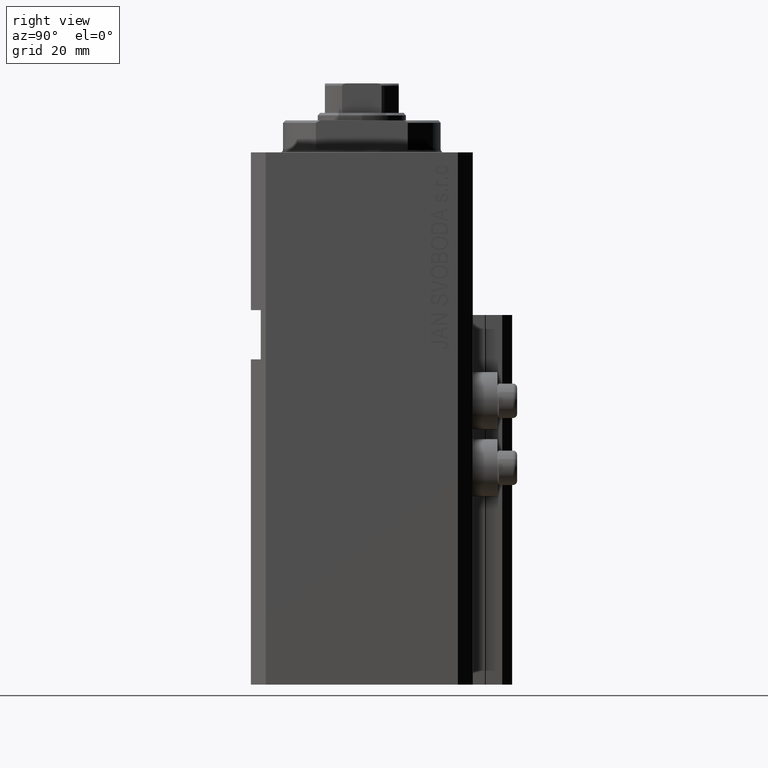
[diagram: clean part render]
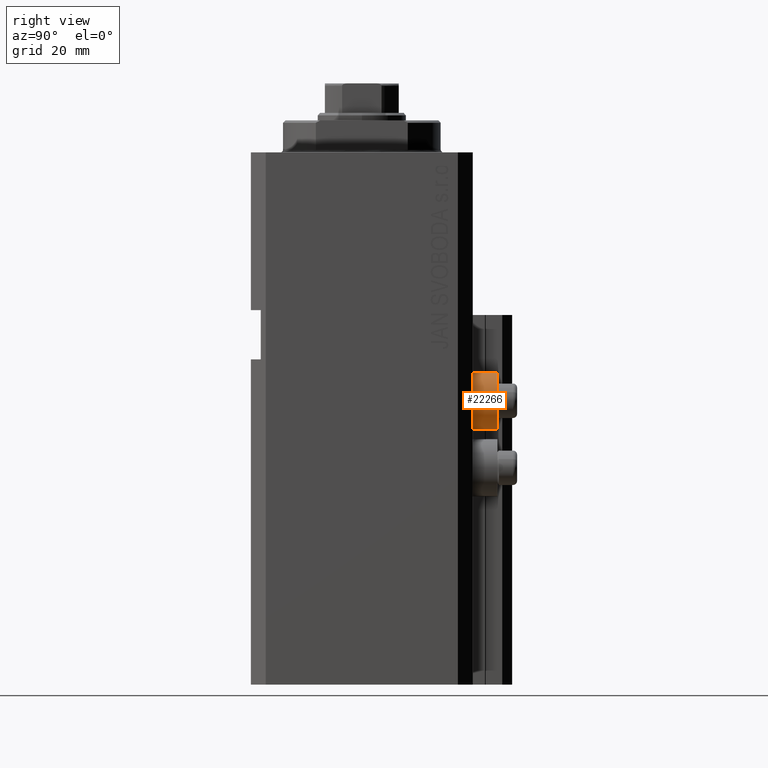
[diagram: same view with one face highlighted and labeled with its STEP entity id]
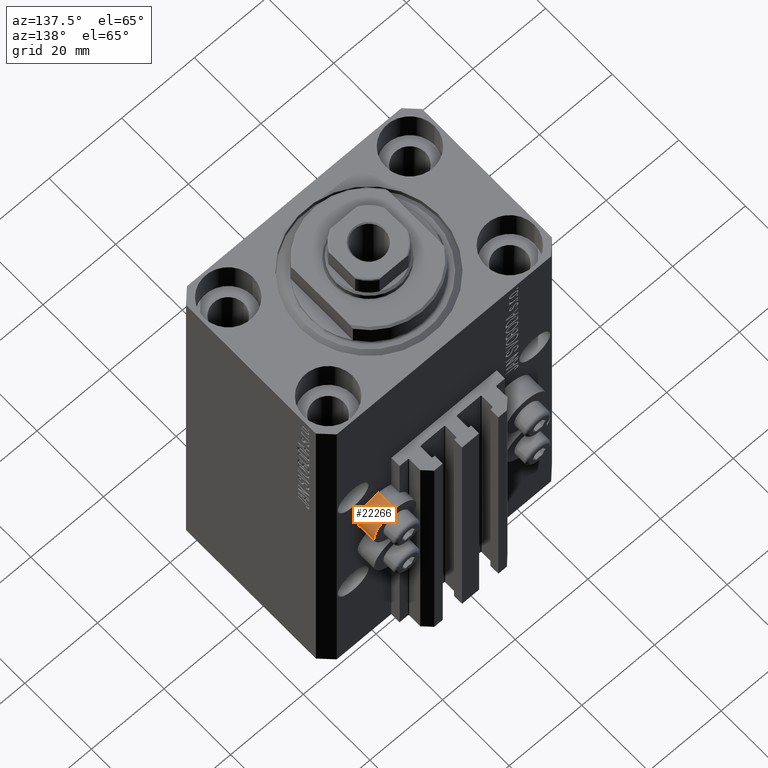
[diagram: same view with one face highlighted and labeled with its STEP entity id]
A machine part, right view. The second image highlights one B-rep face of the part: STEP entity #22266.
A second angle (auxiliary view) of the same face is appended — the face is thin or edge-on in the first view.
In plain terms, the highlighted cylindrical surface (edge-blend (fillet) strip) has radius 5.8 mm, axis along (0, 1, 0).
Its self-contained STEP definition (entity closure, byte-faithful):
#158 = DIRECTION ( 'NONE',  ( -0.000000000000000000, -1.000000000000000000, -0.000000000000000000 ) ) ;
#1231 = LINE ( 'NONE', #30431, #9298 ) ;
#1696 = VERTEX_POINT ( 'NONE', #26730 ) ;
#6152 = VERTEX_POINT ( 'NONE', #38391 ) ;
#6300 = ORIENTED_EDGE ( 'NONE', *, *, #15535, .T. ) ;
#8298 = LINE ( 'NONE', #16018, #27396 ) ;
#9298 = VECTOR ( 'NONE', #29725, 1000.000000000000000 ) ;
#10428 = ORIENTED_EDGE ( 'NONE', *, *, #32292, .F. ) ;
#11938 = CARTESIAN_POINT ( 'NONE',  ( 18.00000000000000355, 22.49999999999951328, -44.60000000000000142 ) ) ;
#13570 = CARTESIAN_POINT ( 'NONE',  ( 18.00000000000000355, 27.49999999996051514, -50.39999999999999858 ) ) ;
#15535 = EDGE_CURVE ( 'NONE', #1696, #6152, #43943, .T. ) ;
#16018 = CARTESIAN_POINT ( 'NONE',  ( 18.00000000000000355, 27.49999999996051514, -44.60000000000000142 ) ) ;
#17897 = DIRECTION ( 'NONE',  ( 0.000000000000000000, 1.000000000000000000, 0.000000000000000000 ) ) ;
#19874 = VERTEX_POINT ( 'NONE', #35409 ) ;
#21238 = DIRECTION ( 'NONE',  ( 0.000000000000000000, 0.000000000000000000, 1.000000000000000000 ) ) ;
#22266 = ADVANCED_FACE ( 'NONE', ( #35227 ), #40321, .T. ) ;
#23736 = DIRECTION ( 'NONE',  ( 0.000000000000000000, 1.000000000000000000, 0.000000000000000000 ) ) ;
#25109 = DIRECTION ( 'NONE',  ( -0.000000000000000000, -1.000000000000000000, -0.000000000000000000 ) ) ;
#25644 = VERTEX_POINT ( 'NONE', #11938 ) ;
#26730 = CARTESIAN_POINT ( 'NONE',  ( 18.00000000000000355, 27.49999999996051514, -56.20000000000000284 ) ) ;
#27396 = VECTOR ( 'NONE', #23736, 1000.000000000000000 ) ;
#28015 = CARTESIAN_POINT ( 'NONE',  ( 18.00000000000000355, 27.49999999996051514, -50.39999999999999858 ) ) ;
#28290 = DIRECTION ( 'NONE',  ( 0.000000000000000000, 0.000000000000000000, 1.000000000000000000 ) ) ;
#29725 = DIRECTION ( 'NONE',  ( 0.000000000000000000, 1.000000000000000000, 0.000000000000000000 ) ) ;
#30431 = CARTESIAN_POINT ( 'NONE',  ( 18.00000000000000355, 27.49999999996051514, -56.20000000000000284 ) ) ;
#32292 = EDGE_CURVE ( 'NONE', #25644, #6152, #8298, .T. ) ;
#33207 = CARTESIAN_POINT ( 'NONE',  ( 18.00000000000000355, 22.49999999999951328, -50.39999999999999858 ) ) ;
#35227 = FACE_OUTER_BOUND ( 'NONE', #43642, .T. ) ;
#35409 = CARTESIAN_POINT ( 'NONE',  ( 18.00000000000000355, 22.49999999999951328, -56.20000000000000284 ) ) ;
#37517 = DIRECTION ( 'NONE',  ( 0.000000000000000000, 0.000000000000000000, 1.000000000000000000 ) ) ;
#38391 = CARTESIAN_POINT ( 'NONE',  ( 18.00000000000000355, 27.49999999996051514, -44.60000000000000142 ) ) ;
#40017 = EDGE_CURVE ( 'NONE', #19874, #25644, #40774, .T. ) ;
#40321 = CYLINDRICAL_SURFACE ( 'NONE', #41060, 5.799999999999999822 ) ;
#40774 = CIRCLE ( 'NONE', #47698, 5.799999999999999822 ) ;
#41060 = AXIS2_PLACEMENT_3D ( 'NONE', #13570, #17897, #28290 ) ;
#42593 = ORIENTED_EDGE ( 'NONE', *, *, #40017, .F. ) ;
#43642 = EDGE_LOOP ( 'NONE', ( #42593, #45979, #6300, #10428 ) ) ;
#43943 = CIRCLE ( 'NONE', #47029, 5.799999999999999822 ) ;
#45876 = EDGE_CURVE ( 'NONE', #19874, #1696, #1231, .T. ) ;
#45979 = ORIENTED_EDGE ( 'NONE', *, *, #45876, .T. ) ;
#47029 = AXIS2_PLACEMENT_3D ( 'NONE', #28015, #25109, #21238 ) ;
#47698 = AXIS2_PLACEMENT_3D ( 'NONE', #33207, #158, #37517 ) ;